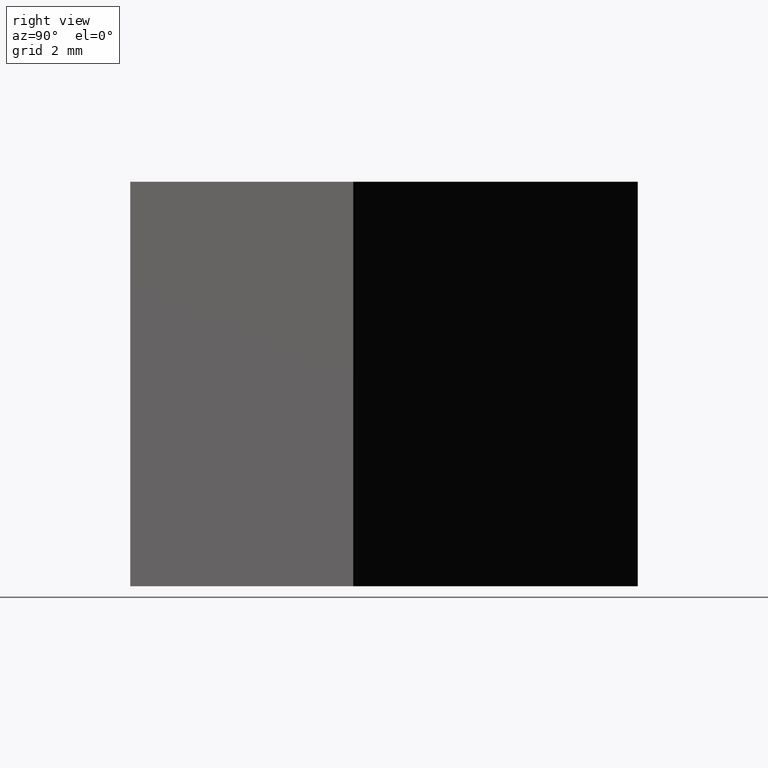
[diagram: clean part render]
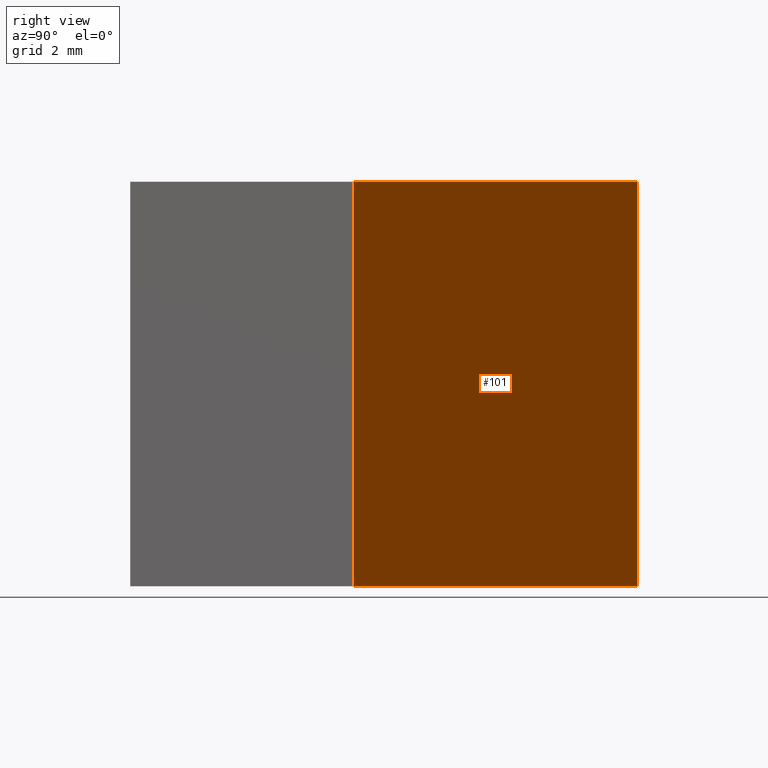
[diagram: same view with one face highlighted and labeled with its STEP entity id]
A machine part, right view. The second image highlights one B-rep face of the part: STEP entity #101.
In plain terms, the highlighted planar face has unit normal (-0.7032, -0.711, 0).
Its self-contained STEP definition (entity closure, byte-faithful):
#3 = ORIENTED_EDGE ( 'NONE', *, *, #82, .T. ) ;
#14 = LINE ( 'NONE', #162, #147 ) ;
#26 = CARTESIAN_POINT ( 'NONE',  ( 9.028570851696299500, 6.361486365058052400, 10.00000000000000000 ) ) ;
#30 = FACE_OUTER_BOUND ( 'NONE', #161, .T. ) ;
#38 = CARTESIAN_POINT ( 'NONE',  ( 1.918842615621676000, 13.39368121511469800, 10.00000000000000000 ) ) ;
#39 = DIRECTION ( 'NONE',  ( -0.7109728236074625000, 0.7032194850056645600, 0.0000000000000000000 ) ) ;
#43 = VECTOR ( 'NONE', #39, 999.9999999999998900 ) ;
#46 = AXIS2_PLACEMENT_3D ( 'NONE', #117, #125, #51 ) ;
#49 = DIRECTION ( 'NONE',  ( -0.0000000000000000000, -0.0000000000000000000, -1.000000000000000000 ) ) ;
#51 = DIRECTION ( 'NONE',  ( 0.7109728236074625000, -0.7032194850056645600, 0.0000000000000000000 ) ) ;
#53 = CARTESIAN_POINT ( 'NONE',  ( 1.918842615621676000, 13.39368121511469800, 0.0000000000000000000 ) ) ;
#54 = VECTOR ( 'NONE', #49, 1000.000000000000000 ) ;
#60 = ORIENTED_EDGE ( 'NONE', *, *, #163, .F. ) ;
#65 = CARTESIAN_POINT ( 'NONE',  ( 9.028570851696299500, 6.361486365058052400, 10.00000000000000000 ) ) ;
#82 = EDGE_CURVE ( 'NONE', #129, #152, #92, .T. ) ;
#92 = LINE ( 'NONE', #65, #54 ) ;
#101 = ADVANCED_FACE ( 'NONE', ( #30 ), #148, .F. ) ;
#104 = CARTESIAN_POINT ( 'NONE',  ( 1.918842615621676000, 13.39368121511469800, 10.00000000000000000 ) ) ;
#109 = ORIENTED_EDGE ( 'NONE', *, *, #121, .T. ) ;
#110 = EDGE_CURVE ( 'NONE', #137, #114, #150, .T. ) ;
#112 = VECTOR ( 'NONE', #139, 1000.000000000000000 ) ;
#114 = VERTEX_POINT ( 'NONE', #53 ) ;
#117 = CARTESIAN_POINT ( 'NONE',  ( 9.028570851696299500, 6.361486365058052400, 10.00000000000000000 ) ) ;
#119 = CARTESIAN_POINT ( 'NONE',  ( 9.028570851696299500, 6.361486365058052400, 0.0000000000000000000 ) ) ;
#121 = EDGE_CURVE ( 'NONE', #152, #114, #136, .T. ) ;
#125 = DIRECTION ( 'NONE',  ( -0.7032194850056645600, -0.7109728236074625000, 0.0000000000000000000 ) ) ;
#126 = CARTESIAN_POINT ( 'NONE',  ( 9.028570851696299500, 6.361486365058052400, 0.0000000000000000000 ) ) ;
#129 = VERTEX_POINT ( 'NONE', #26 ) ;
#135 = ORIENTED_EDGE ( 'NONE', *, *, #110, .F. ) ;
#136 = LINE ( 'NONE', #119, #43 ) ;
#137 = VERTEX_POINT ( 'NONE', #104 ) ;
#139 = DIRECTION ( 'NONE',  ( -0.0000000000000000000, -0.0000000000000000000, -1.000000000000000000 ) ) ;
#141 = DIRECTION ( 'NONE',  ( -0.7109728236074625000, 0.7032194850056645600, 0.0000000000000000000 ) ) ;
#147 = VECTOR ( 'NONE', #141, 999.9999999999998900 ) ;
#148 = PLANE ( 'NONE',  #46 ) ;
#150 = LINE ( 'NONE', #38, #112 ) ;
#152 = VERTEX_POINT ( 'NONE', #126 ) ;
#161 = EDGE_LOOP ( 'NONE', ( #109, #135, #60, #3 ) ) ;
#162 = CARTESIAN_POINT ( 'NONE',  ( 9.028570851696299500, 6.361486365058052400, 10.00000000000000000 ) ) ;
#163 = EDGE_CURVE ( 'NONE', #129, #137, #14, .T. ) ;